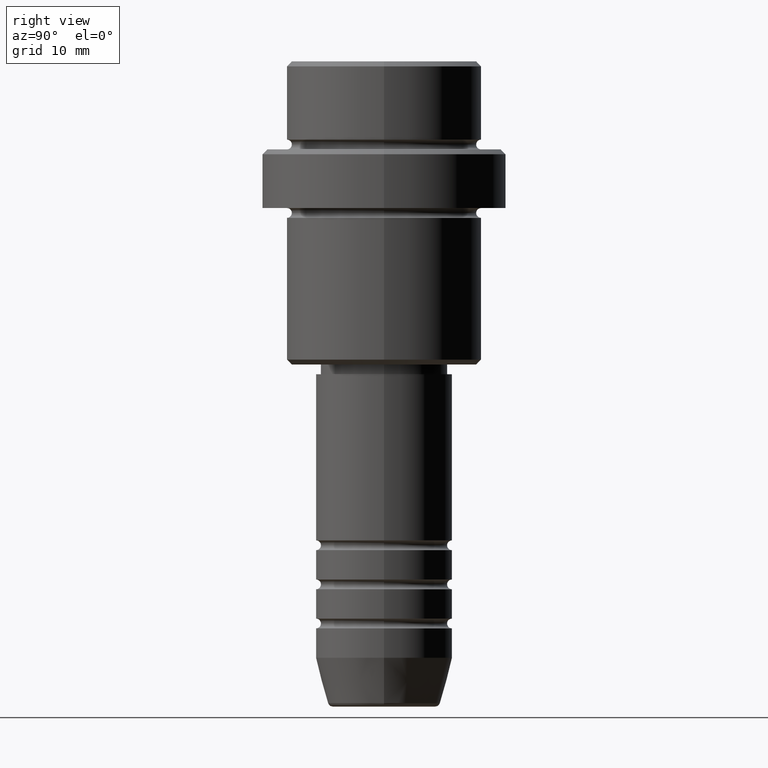
[diagram: clean part render]
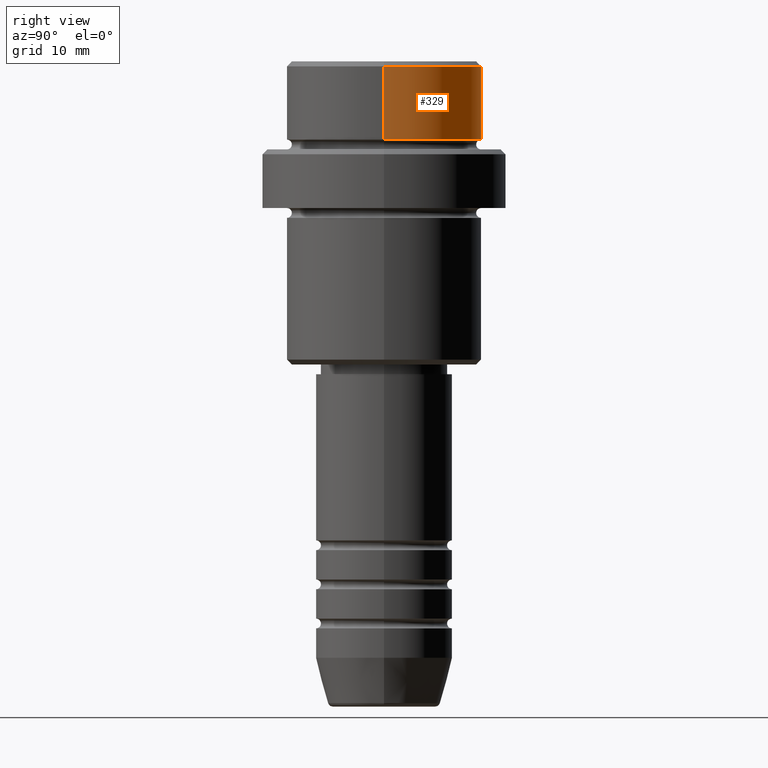
[diagram: same view with one face highlighted and labeled with its STEP entity id]
A machine part, right view. The second image highlights one B-rep face of the part: STEP entity #329.
In plain terms, the highlighted cylindrical surface (partial cylindrical patch) has radius 10 mm, axis along (-0, -0, 1).
Its self-contained STEP definition (entity closure, byte-faithful):
#45 = CARTESIAN_POINT ( 'NONE',  ( 9.999999999999998224, 0.000000000000000000, 0.000000000000000000 ) ) ;
#104 = ORIENTED_EDGE ( 'NONE', *, *, #923, .T. ) ;
#119 = DIRECTION ( 'NONE',  ( -0.000000000000000000, -0.000000000000000000, 1.000000000000000000 ) ) ;
#128 = ORIENTED_EDGE ( 'NONE', *, *, #1253, .T. ) ;
#140 = DIRECTION ( 'NONE',  ( 1.000000000000000000, 0.000000000000000000, 0.000000000000000000 ) ) ;
#222 = CIRCLE ( 'NONE', #1028, 9.999999999999998224 ) ;
#238 = VERTEX_POINT ( 'NONE', #791 ) ;
#248 = CARTESIAN_POINT ( 'NONE',  ( 0.000000000000000000, 0.000000000000000000, 0.000000000000000000 ) ) ;
#281 = FACE_OUTER_BOUND ( 'NONE', #1229, .T. ) ;
#297 = VERTEX_POINT ( 'NONE', #1145 ) ;
#329 = ADVANCED_FACE ( 'NONE', ( #281 ), #1150, .T. ) ;
#377 = LINE ( 'NONE', #664, #607 ) ;
#387 = CARTESIAN_POINT ( 'NONE',  ( 9.999999999999998224, 0.000000000000000000, -7.999999999999998224 ) ) ;
#502 = DIRECTION ( 'NONE',  ( -0.000000000000000000, -0.000000000000000000, 1.000000000000000000 ) ) ;
#607 = VECTOR ( 'NONE', #119, 1000.000000000000000 ) ;
#664 = CARTESIAN_POINT ( 'NONE',  ( -9.999999999999998224, 1.224646799147353059E-15, 0.000000000000000000 ) ) ;
#667 = VERTEX_POINT ( 'NONE', #864 ) ;
#767 = DIRECTION ( 'NONE',  ( -0.000000000000000000, -0.000000000000000000, 1.000000000000000000 ) ) ;
#774 = CARTESIAN_POINT ( 'NONE',  ( 0.000000000000000000, 0.000000000000000000, -7.999999999999998224 ) ) ;
#791 = CARTESIAN_POINT ( 'NONE',  ( -9.999999999999998224, 1.224646799147353059E-15, -0.4999999999999970024 ) ) ;
#824 = DIRECTION ( 'NONE',  ( 1.000000000000000000, 0.000000000000000000, 0.000000000000000000 ) ) ;
#840 = DIRECTION ( 'NONE',  ( 0.000000000000000000, 0.000000000000000000, -1.000000000000000000 ) ) ;
#864 = CARTESIAN_POINT ( 'NONE',  ( -9.999999999999998224, 1.224646799147353059E-15, -7.999999999999998224 ) ) ;
#923 = EDGE_CURVE ( 'NONE', #238, #297, #1367, .T. ) ;
#924 = VERTEX_POINT ( 'NONE', #387 ) ;
#944 = CARTESIAN_POINT ( 'NONE',  ( 0.000000000000000000, 0.000000000000000000, -0.4999999999999970024 ) ) ;
#992 = DIRECTION ( 'NONE',  ( 1.000000000000000000, 0.000000000000000000, 0.000000000000000000 ) ) ;
#1024 = EDGE_CURVE ( 'NONE', #924, #667, #222, .T. ) ;
#1028 = AXIS2_PLACEMENT_3D ( 'NONE', #774, #767, #992 ) ;
#1037 = LINE ( 'NONE', #45, #1295 ) ;
#1041 = DIRECTION ( 'NONE',  ( -0.000000000000000000, -0.000000000000000000, 1.000000000000000000 ) ) ;
#1121 = ORIENTED_EDGE ( 'NONE', *, *, #1024, .T. ) ;
#1145 = CARTESIAN_POINT ( 'NONE',  ( 9.999999999999998224, 0.000000000000000000, -0.4999999999999970024 ) ) ;
#1150 = CYLINDRICAL_SURFACE ( 'NONE', #1160, 9.999999999999998224 ) ;
#1160 = AXIS2_PLACEMENT_3D ( 'NONE', #248, #1041, #140 ) ;
#1229 = EDGE_LOOP ( 'NONE', ( #1121, #128, #104, #1409 ) ) ;
#1253 = EDGE_CURVE ( 'NONE', #667, #238, #377, .T. ) ;
#1293 = AXIS2_PLACEMENT_3D ( 'NONE', #944, #840, #824 ) ;
#1295 = VECTOR ( 'NONE', #502, 1000.000000000000000 ) ;
#1327 = EDGE_CURVE ( 'NONE', #924, #297, #1037, .T. ) ;
#1367 = CIRCLE ( 'NONE', #1293, 9.999999999999998224 ) ;
#1409 = ORIENTED_EDGE ( 'NONE', *, *, #1327, .F. ) ;